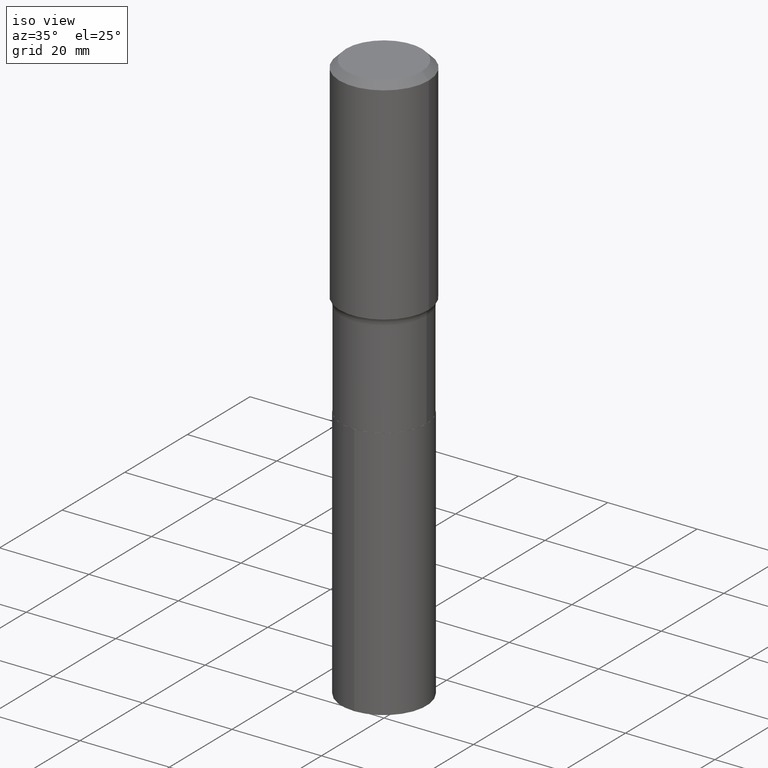
[diagram: clean part render]
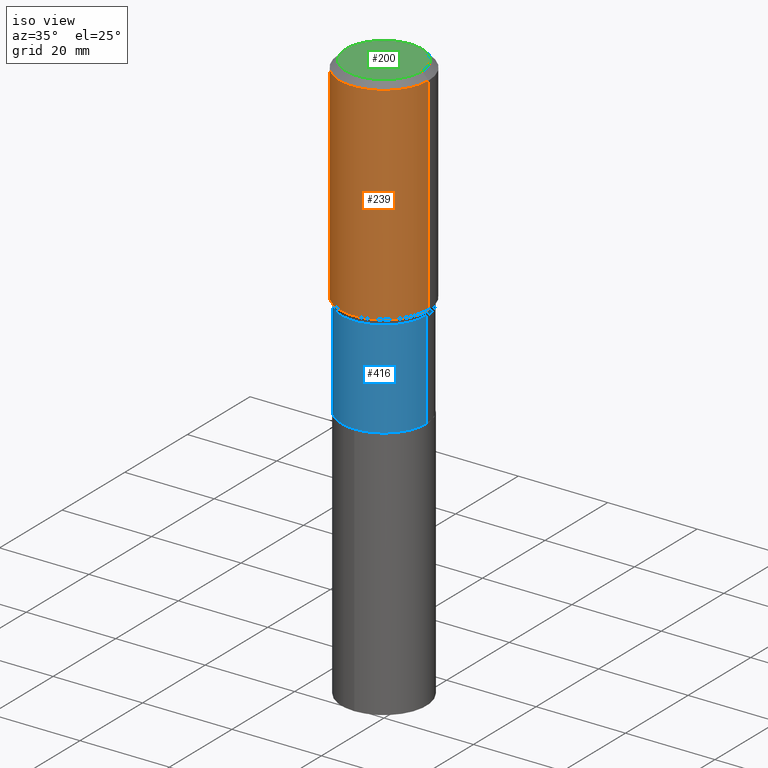
[diagram: same view with three faces highlighted in distinct colors, each labeled with its STEP entity id]
A machine part, iso view with three faces highlighted in distinct colors.
Their STEP definitions:

[orange] entity #239 — the highlighted cylindrical surface (partial cylindrical patch) has radius 10 mm, axis along (-0, 0, 1).
#4 = CIRCLE ( 'NONE', #373, 0.3937000000000000499 ) ;
#33 = DIRECTION ( 'NONE',  ( -2.445468806185136597E-29, 3.491481338843145583E-15, 1.000000000000000000 ) ) ;
#35 = CARTESIAN_POINT ( 'NONE',  ( 4.605507269192441641E-29, -6.575443794507560205E-15, -1.883281952950732974 ) ) ;
#36 = ORIENTED_EDGE ( 'NONE', *, *, #47, .F. ) ;
#47 = EDGE_CURVE ( 'NONE', #386, #309, #4, .T. ) ;
#73 = DIRECTION ( 'NONE',  ( -2.445468806185136597E-29, 3.491481338843145583E-15, 1.000000000000000000 ) ) ;
#105 = CARTESIAN_POINT ( 'NONE',  ( 0.3937000000000001609, -9.324636200712642633E-15, -1.883281952950732974 ) ) ;
#143 = CARTESIAN_POINT ( 'NONE',  ( 0.000000000000000000, 0.000000000000000000, 0.000000000000000000 ) ) ;
#151 = EDGE_CURVE ( 'NONE', #429, #386, #243, .T. ) ;
#178 = FACE_OUTER_BOUND ( 'NONE', #460, .T. ) ;
#179 = LINE ( 'NONE', #405, #352 ) ;
#208 = CARTESIAN_POINT ( 'NONE',  ( 1.444171603492640145E-30, -2.061894304653831000E-16, -0.05905500000000032251 ) ) ;
#217 = DIRECTION ( 'NONE',  ( 1.000000000000000000, -6.982962677686266711E-15, 4.876176775795935793E-29 ) ) ;
#223 = AXIS2_PLACEMENT_3D ( 'NONE', #143, #73, #217 ) ;
#228 = ORIENTED_EDGE ( 'NONE', *, *, #276, .T. ) ;
#239 = ADVANCED_FACE ( 'NONE', ( #178 ), #256, .T. ) ;
#243 = LINE ( 'NONE', #314, #358 ) ;
#251 = EDGE_CURVE ( 'NONE', #455, #309, #179, .T. ) ;
#256 = CYLINDRICAL_SURFACE ( 'NONE', #223, 0.3937000000000001054 ) ;
#260 = AXIS2_PLACEMENT_3D ( 'NONE', #35, #33, #402 ) ;
#271 = CARTESIAN_POINT ( 'NONE',  ( 0.3937000000000000499, -2.955381836670466193E-15, -0.05905500000000032251 ) ) ;
#276 = EDGE_CURVE ( 'NONE', #429, #455, #479, .T. ) ;
#282 = DIRECTION ( 'NONE',  ( -2.445468806185136877E-29, 3.491481338843145188E-15, 1.000000000000000000 ) ) ;
#307 = ORIENTED_EDGE ( 'NONE', *, *, #151, .F. ) ;
#309 = VERTEX_POINT ( 'NONE', #271 ) ;
#311 = ORIENTED_EDGE ( 'NONE', *, *, #251, .T. ) ;
#314 = CARTESIAN_POINT ( 'NONE',  ( -0.3937000000000001054, 2.797406750687515181E-15, -1.936584745033357016E-29 ) ) ;
#318 = CARTESIAN_POINT ( 'NONE',  ( -0.3937000000000001609, -3.778037043820043841E-15, -1.883281952950732974 ) ) ;
#350 = CARTESIAN_POINT ( 'NONE',  ( -0.3937000000000000499, -5.934098617989565085E-16, -0.05905500000000032251 ) ) ;
#352 = VECTOR ( 'NONE', #408, 39.37007874015748143 ) ;
#357 = DIRECTION ( 'NONE',  ( 1.000000000000000000, -6.982962677686265133E-15, 0.000000000000000000 ) ) ;
#358 = VECTOR ( 'NONE', #282, 39.37007874015748143 ) ;
#362 = DIRECTION ( 'NONE',  ( -2.445468806185136597E-29, 3.491481338843145583E-15, 1.000000000000000000 ) ) ;
#373 = AXIS2_PLACEMENT_3D ( 'NONE', #208, #362, #357 ) ;
#386 = VERTEX_POINT ( 'NONE', #350 ) ;
#402 = DIRECTION ( 'NONE',  ( 1.000000000000000000, -6.982962677686266711E-15, 0.000000000000000000 ) ) ;
#405 = CARTESIAN_POINT ( 'NONE',  ( 0.3937000000000001054, -2.749192406205084005E-15, 1.919750796630860452E-29 ) ) ;
#408 = DIRECTION ( 'NONE',  ( -2.445468806185136877E-29, 3.491481338843145188E-15, 1.000000000000000000 ) ) ;
#429 = VERTEX_POINT ( 'NONE', #318 ) ;
#455 = VERTEX_POINT ( 'NONE', #105 ) ;
#460 = EDGE_LOOP ( 'NONE', ( #307, #228, #311, #36 ) ) ;
#479 = CIRCLE ( 'NONE', #260, 0.3937000000000002164 ) ;

[blue] entity #416 — the highlighted cylindrical surface (partial cylindrical patch) has radius 9.4996 mm, axis along (-0, 0, 1).
#14 = EDGE_CURVE ( 'NONE', #162, #92, #346, .T. ) ;
#27 = VECTOR ( 'NONE', #438, 39.37007874015748143 ) ;
#28 = CARTESIAN_POINT ( 'NONE',  ( 0.3739999999999998881, -9.367993580250032960E-15, -1.935099999999999820 ) ) ;
#58 = LINE ( 'NONE', #397, #130 ) ;
#63 = DIRECTION ( 'NONE',  ( -2.445468806185136877E-29, 3.491481338843145188E-15, 1.000000000000000000 ) ) ;
#71 = DIRECTION ( 'NONE',  ( 1.000000000000000000, -6.982962677686265133E-15, 0.000000000000000000 ) ) ;
#88 = CARTESIAN_POINT ( 'NONE',  ( 6.834596219526220026E-29, -9.757992045798822890E-15, -2.794799999999999951 ) ) ;
#92 = VERTEX_POINT ( 'NONE', #393 ) ;
#100 = EDGE_CURVE ( 'NONE', #128, #467, #58, .T. ) ;
#119 = ORIENTED_EDGE ( 'NONE', *, *, #430, .T. ) ;
#125 = FACE_OUTER_BOUND ( 'NONE', #348, .T. ) ;
#128 = VERTEX_POINT ( 'NONE', #167 ) ;
#130 = VECTOR ( 'NONE', #63, 39.37007874015748143 ) ;
#137 = DIRECTION ( 'NONE',  ( -2.445468806185136597E-29, 3.491481338843145583E-15, 1.000000000000000000 ) ) ;
#157 = EDGE_CURVE ( 'NONE', #92, #467, #180, .T. ) ;
#162 = VERTEX_POINT ( 'NONE', #474 ) ;
#167 = CARTESIAN_POINT ( 'NONE',  ( 0.3739999999999999991, -1.236962008725348689E-14, -2.794799999999999951 ) ) ;
#169 = DIRECTION ( 'NONE',  ( 1.000000000000000000, -6.982962677686267499E-15, 0.000000000000000000 ) ) ;
#180 = CIRCLE ( 'NONE', #427, 0.3739999999999998881 ) ;
#235 = DIRECTION ( 'NONE',  ( -2.445468806185136597E-29, 3.491481338843145583E-15, 1.000000000000000000 ) ) ;
#249 = CARTESIAN_POINT ( 'NONE',  ( -0.3739999999999999436, 2.657429831742774294E-15, -1.839681723755334340E-29 ) ) ;
#261 = CIRCLE ( 'NONE', #280, 0.3739999999999999991 ) ;
#274 = DIRECTION ( 'NONE',  ( 1.000000000000000000, -6.982962677686266711E-15, 4.876176775795935793E-29 ) ) ;
#280 = AXIS2_PLACEMENT_3D ( 'NONE', #88, #235, #71 ) ;
#283 = DIRECTION ( 'NONE',  ( -2.445468806185136597E-29, 3.491481338843145583E-15, 1.000000000000000000 ) ) ;
#299 = ORIENTED_EDGE ( 'NONE', *, *, #14, .F. ) ;
#310 = CYLINDRICAL_SURFACE ( 'NONE', #413, 0.3739999999999999436 ) ;
#320 = CARTESIAN_POINT ( 'NONE',  ( 4.732226686848857494E-29, -6.756365538795370536E-15, -1.935099999999999820 ) ) ;
#346 = LINE ( 'NONE', #249, #27 ) ;
#348 = EDGE_LOOP ( 'NONE', ( #299, #119, #391, #465 ) ) ;
#391 = ORIENTED_EDGE ( 'NONE', *, *, #100, .T. ) ;
#393 = CARTESIAN_POINT ( 'NONE',  ( -0.3739999999999998881, -5.599748960554322813E-15, -1.935099999999999820 ) ) ;
#397 = CARTESIAN_POINT ( 'NONE',  ( 0.3739999999999999436, -2.611628041454663213E-15, 1.823690114147679661E-29 ) ) ;
#413 = AXIS2_PLACEMENT_3D ( 'NONE', #466, #283, #274 ) ;
#416 = ADVANCED_FACE ( 'NONE', ( #125 ), #310, .T. ) ;
#427 = AXIS2_PLACEMENT_3D ( 'NONE', #320, #137, #169 ) ;
#430 = EDGE_CURVE ( 'NONE', #162, #128, #261, .T. ) ;
#438 = DIRECTION ( 'NONE',  ( -2.445468806185136877E-29, 3.491481338843145188E-15, 1.000000000000000000 ) ) ;
#465 = ORIENTED_EDGE ( 'NONE', *, *, #157, .F. ) ;
#466 = CARTESIAN_POINT ( 'NONE',  ( 0.000000000000000000, 0.000000000000000000, 0.000000000000000000 ) ) ;
#467 = VERTEX_POINT ( 'NONE', #28 ) ;
#474 = CARTESIAN_POINT ( 'NONE',  ( -0.3739999999999999991, -5.599748960554322024E-15, -2.794799999999999951 ) ) ;

[green] entity #200 — the highlighted planar face has unit normal (0, -0, -1).
#60 = AXIS2_PLACEMENT_3D ( 'NONE', #287, #487, #491 ) ;
#76 = VERTEX_POINT ( 'NONE', #212 ) ;
#93 = FACE_OUTER_BOUND ( 'NONE', #109, .T. ) ;
#106 = EDGE_CURVE ( 'NONE', #76, #161, #198, .T. ) ;
#109 = EDGE_LOOP ( 'NONE', ( #375, #129 ) ) ;
#120 = AXIS2_PLACEMENT_3D ( 'NONE', #254, #332, #295 ) ;
#129 = ORIENTED_EDGE ( 'NONE', *, *, #106, .T. ) ;
#161 = VERTEX_POINT ( 'NONE', #322 ) ;
#165 = CARTESIAN_POINT ( 'NONE',  ( -1.001697619218025096E-46, 1.430158722866394644E-32, 4.096137381448122233E-18 ) ) ;
#198 = CIRCLE ( 'NONE', #396, 0.3346450000000000258 ) ;
#200 = ADVANCED_FACE ( 'NONE', ( #93 ), #394, .F. ) ;
#212 = CARTESIAN_POINT ( 'NONE',  ( 0.3346450000000000258, -2.601499422326144794E-15, 4.096137381465388580E-18 ) ) ;
#213 = EDGE_CURVE ( 'NONE', #161, #76, #245, .T. ) ;
#245 = CIRCLE ( 'NONE', #120, 0.3346450000000000258 ) ;
#254 = CARTESIAN_POINT ( 'NONE',  ( -1.001697619218025096E-46, 1.430158722866394644E-32, 4.096137381448122233E-18 ) ) ;
#287 = CARTESIAN_POINT ( 'NONE',  ( -5.008488096090125481E-47, 7.150793614331973222E-33, 2.048068690724061116E-18 ) ) ;
#289 = DIRECTION ( 'NONE',  ( -2.445468806185136597E-29, 3.491481338843145583E-15, 1.000000000000000000 ) ) ;
#295 = DIRECTION ( 'NONE',  ( 1.000000000000000000, -6.982962677686267499E-15, 4.876152824003125403E-29 ) ) ;
#317 = DIRECTION ( 'NONE',  ( 1.000000000000000000, -6.982962677686267499E-15, 4.876152824003125403E-29 ) ) ;
#322 = CARTESIAN_POINT ( 'NONE',  ( -0.3346450000000000258, 2.439908260507010921E-15, 4.096137381431419798E-18 ) ) ;
#332 = DIRECTION ( 'NONE',  ( -2.445468806185136597E-29, 3.491481338843145583E-15, 1.000000000000000000 ) ) ;
#375 = ORIENTED_EDGE ( 'NONE', *, *, #213, .T. ) ;
#394 = PLANE ( 'NONE',  #60 ) ;
#396 = AXIS2_PLACEMENT_3D ( 'NONE', #165, #289, #317 ) ;
#487 = DIRECTION ( 'NONE',  ( 2.438088387897960049E-29, -3.491481338843145188E-15, -1.000000000000000000 ) ) ;
#491 = DIRECTION ( 'NONE',  ( -1.000000000000000000, 6.982962677686265922E-15, -4.876176775795935793E-29 ) ) ;